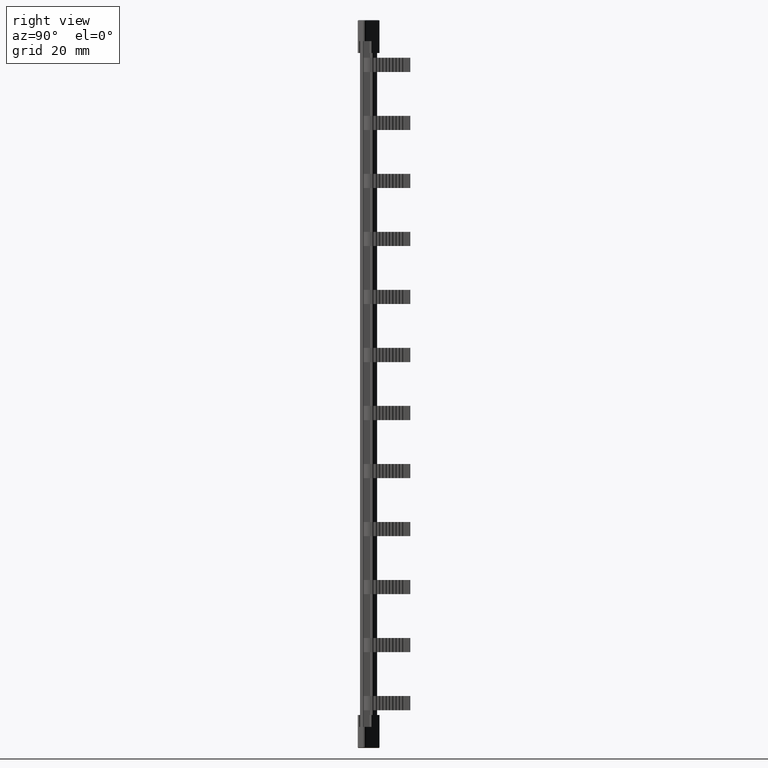
[diagram: clean part render]
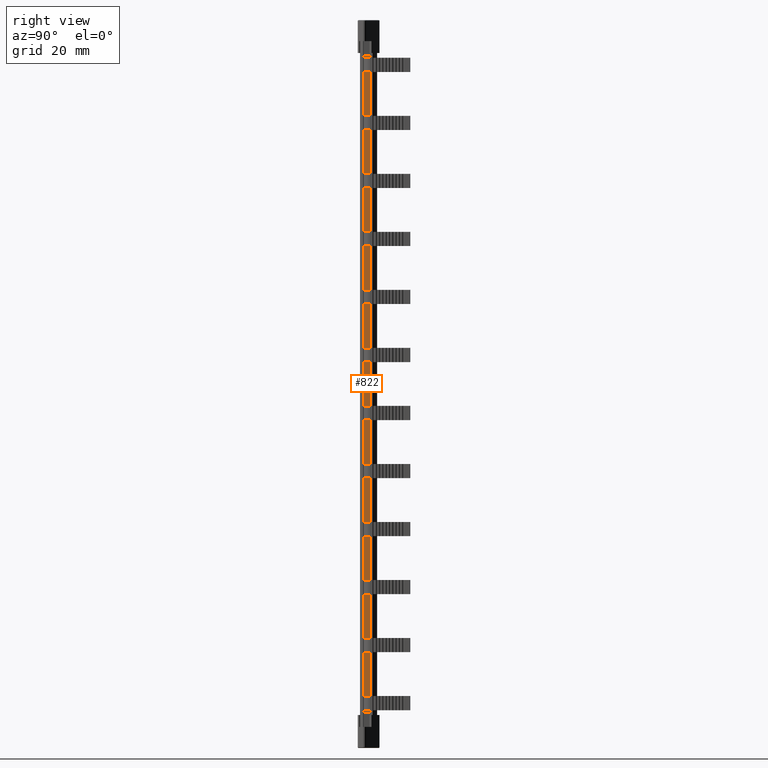
[diagram: same view with one face highlighted and labeled with its STEP entity id]
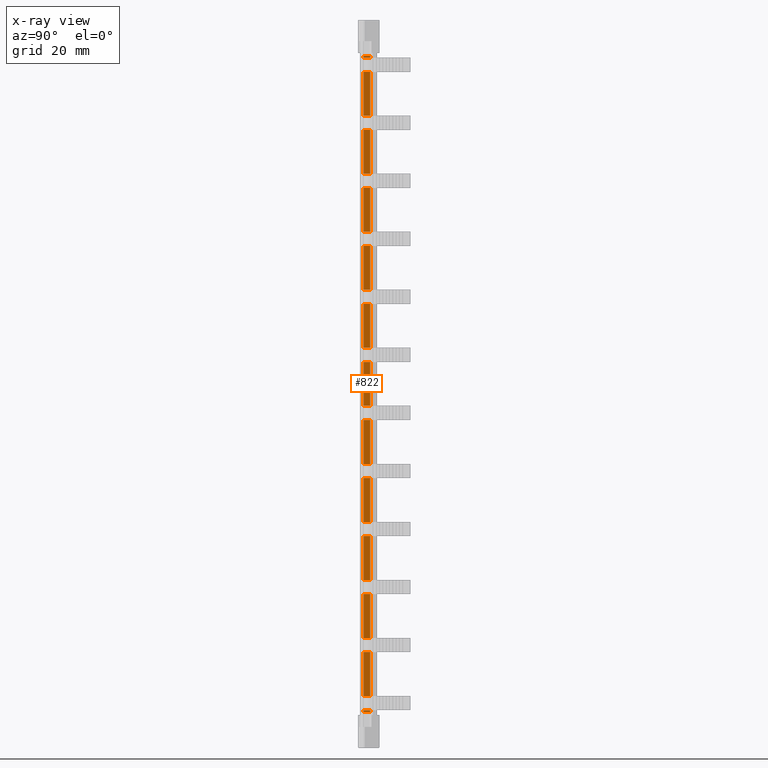
[diagram: x-ray of the same camera — body ghosted, the highlighted face saturated]
A machine part, right view. The second image highlights one B-rep face of the part: STEP entity #822.
The next image is the same camera in x-ray: the body ghosted, the highlighted face saturated — about 0% of this face is hidden behind the body in this view.
In plain terms, the highlighted planar face has unit normal (-1, 0, 0).
Its self-contained STEP definition (entity closure, byte-faithful):
#822 = ADVANCED_FACE ( 'NONE', ( #11958 ), #11952, .F. ) ;
#2274 = LINE ( 'NONE', #2296, #14258 ) ;
#2296 = CARTESIAN_POINT ( 'NONE',  ( 10.37430495582721900, 3.092390552839105600, 28.15000000000000900 ) ) ;
#2360 = DIRECTION ( 'NONE',  ( 0.0000000000000000000, 1.000000000000000000, -0.0000000000000000000 ) ) ;
#2376 = CARTESIAN_POINT ( 'NONE',  ( 10.37430495582721900, 3.092390552839105600, 67.65000000000002000 ) ) ;
#2418 = DIRECTION ( 'NONE',  ( -0.0000000000000000000, -1.000000000000000000, 0.0000000000000000000 ) ) ;
#2452 = LINE ( 'NONE', #2376, #14307 ) ;
#2509 = EDGE_CURVE ( 'NONE', #19887, #19978, #2274, .T. ) ;
#2528 = EDGE_CURVE ( 'NONE', #19786, #19942, #2452, .T. ) ;
#2600 = EDGE_CURVE ( 'NONE', #19946, #19940, #2719, .T. ) ;
#2636 = EDGE_CURVE ( 'NONE', #20057, #19939, #2784, .T. ) ;
#2643 = EDGE_CURVE ( 'NONE', #19977, #19910, #2914, .T. ) ;
#2646 = EDGE_CURVE ( 'NONE', #19921, #19903, #2946, .T. ) ;
#2648 = EDGE_CURVE ( 'NONE', #20032, #20057, #2918, .T. ) ;
#2650 = EDGE_CURVE ( 'NONE', #19940, #19925, #2921, .T. ) ;
#2660 = EDGE_CURVE ( 'NONE', #20036, #20059, #2923, .T. ) ;
#2669 = EDGE_CURVE ( 'NONE', #19973, #19955, #2896, .T. ) ;
#2673 = EDGE_CURVE ( 'NONE', #19929, #19912, #2870, .T. ) ;
#2681 = EDGE_CURVE ( 'NONE', #19978, #19960, #2955, .T. ) ;
#2698 = EDGE_CURVE ( 'NONE', #19944, #19971, #2998, .T. ) ;
#2704 = EDGE_CURVE ( 'NONE', #19884, #19919, #3026, .T. ) ;
#2706 = EDGE_CURVE ( 'NONE', #19915, #19931, #3127, .T. ) ;
#2712 = EDGE_CURVE ( 'NONE', #19903, #19900, #3049, .T. ) ;
#2716 = EDGE_CURVE ( 'NONE', #19949, #19973, #3110, .T. ) ;
#2718 = EDGE_CURVE ( 'NONE', #19900, #19917, #3074, .T. ) ;
#2719 = LINE ( 'NONE', #2745, #14318 ) ;
#2720 = EDGE_CURVE ( 'NONE', #19971, #19933, #3063, .T. ) ;
#2726 = EDGE_CURVE ( 'NONE', #19758, #19884, #3050, .T. ) ;
#2733 = EDGE_CURVE ( 'NONE', #19919, #19889, #3176, .T. ) ;
#2737 = EDGE_CURVE ( 'NONE', #19955, #19777, #3199, .T. ) ;
#2739 = EDGE_CURVE ( 'NONE', #19912, #19786, #3169, .T. ) ;
#2745 = CARTESIAN_POINT ( 'NONE',  ( 10.37430495582721900, 3.092390552839105600, 45.75000000000001400 ) ) ;
#2749 = DIRECTION ( 'NONE',  ( 0.0000000000000000000, 1.000000000000000000, -0.0000000000000000000 ) ) ;
#2755 = EDGE_CURVE ( 'NONE', #19939, #20053, #3193, .T. ) ;
#2758 = EDGE_CURVE ( 'NONE', #19925, #19935, #3195, .T. ) ;
#2760 = EDGE_CURVE ( 'NONE', #19953, #19959, #3269, .T. ) ;
#2764 = EDGE_CURVE ( 'NONE', #19931, #19977, #3230, .T. ) ;
#2766 = EDGE_CURVE ( 'NONE', #19960, #19951, #3209, .T. ) ;
#2773 = EDGE_CURVE ( 'NONE', #19933, #19771, #3274, .T. ) ;
#2784 = LINE ( 'NONE', #2836, #14306 ) ;
#2824 = EDGE_CURVE ( 'NONE', #19866, #19953, #3385, .T. ) ;
#2828 = EDGE_CURVE ( 'NONE', #20038, #20029, #3374, .T. ) ;
#2833 = EDGE_CURVE ( 'NONE', #20069, #19908, #3390, .T. ) ;
#2835 = EDGE_CURVE ( 'NONE', #20059, #20049, #3376, .T. ) ;
#2836 = CARTESIAN_POINT ( 'NONE',  ( 10.37430495582721900, 3.092390552839102500, -0.9240927571826929000 ) ) ;
#2837 = EDGE_CURVE ( 'NONE', #20029, #20069, #3368, .T. ) ;
#2839 = DIRECTION ( 'NONE',  ( 0.0000000000000000000, 0.0000000000000000000, 1.000000000000000000 ) ) ;
#2845 = EDGE_CURVE ( 'NONE', #19901, #20036, #3434, .T. ) ;
#2870 = LINE ( 'NONE', #2878, #14398 ) ;
#2875 = DIRECTION ( 'NONE',  ( 0.0000000000000000000, 0.0000000000000000000, 1.000000000000000000 ) ) ;
#2878 = CARTESIAN_POINT ( 'NONE',  ( 10.37430495582721900, 3.092390552839105600, 63.35000000000001600 ) ) ;
#2885 = EDGE_CURVE ( 'NONE', #19959, #19952, #3473, .T. ) ;
#2884 = CARTESIAN_POINT ( 'NONE',  ( 10.37430495582721900, 3.092390552839105600, 10.55000000000000400 ) ) ;
#2888 = CARTESIAN_POINT ( 'NONE',  ( 10.37430495582721900, 3.092390552839105600, 133.7500000000000300 ) ) ;
#2890 = CARTESIAN_POINT ( 'NONE',  ( 10.37430495582721900, 3.092390552839108200, -0.9240927571826929000 ) ) ;
#2896 = LINE ( 'NONE', #2903, #14377 ) ;
#2903 = CARTESIAN_POINT ( 'NONE',  ( 10.37430495582721900, 3.092390552839102500, -0.9240927571826929000 ) ) ;
#2907 = DIRECTION ( 'NONE',  ( -0.0000000000000000000, -1.000000000000000000, 0.0000000000000000000 ) ) ;
#2913 = DIRECTION ( 'NONE',  ( 0.0000000000000000000, 1.000000000000000000, -0.0000000000000000000 ) ) ;
#2914 = LINE ( 'NONE', #2925, #14360 ) ;
#2916 = DIRECTION ( 'NONE',  ( 0.0000000000000000000, 1.000000000000000000, -0.0000000000000000000 ) ) ;
#2918 = LINE ( 'NONE', #2884, #14368 ) ;
#2921 = LINE ( 'NONE', #2942, #14362 ) ;
#2923 = LINE ( 'NONE', #2890, #14347 ) ;
#2925 = CARTESIAN_POINT ( 'NONE',  ( 10.37430495582721900, 3.092390552839105600, 120.4500000000000200 ) ) ;
#2933 = DIRECTION ( 'NONE',  ( 0.0000000000000000000, 0.0000000000000000000, 1.000000000000000000 ) ) ;
#2942 = CARTESIAN_POINT ( 'NONE',  ( 10.37430495582721900, 3.092390552839102500, -0.9240927571826929000 ) ) ;
#2946 = LINE ( 'NONE', #2888, #14391 ) ;
#2955 = LINE ( 'NONE', #2962, #14399 ) ;
#2962 = CARTESIAN_POINT ( 'NONE',  ( 10.37430495582721900, 3.092390552839102500, -0.9240927571826929000 ) ) ;
#2970 = DIRECTION ( 'NONE',  ( 0.0000000000000000000, 1.000000000000000000, -0.0000000000000000000 ) ) ;
#2977 = DIRECTION ( 'NONE',  ( 0.0000000000000000000, 0.0000000000000000000, 1.000000000000000000 ) ) ;
#2984 = DIRECTION ( 'NONE',  ( 0.0000000000000000000, 0.0000000000000000000, 1.000000000000000000 ) ) ;
#2998 = LINE ( 'NONE', #3013, #14380 ) ;
#3013 = CARTESIAN_POINT ( 'NONE',  ( 10.37430495582721900, 3.092390552839105600, 151.3500000000000800 ) ) ;
#3017 = EDGE_CURVE ( 'NONE', #18647, #20049, #3724, .T. ) ;
#3018 = DIRECTION ( 'NONE',  ( 0.0000000000000000000, 1.000000000000000000, -0.0000000000000000000 ) ) ;
#3026 = LINE ( 'NONE', #3028, #14390 ) ;
#3028 = CARTESIAN_POINT ( 'NONE',  ( 10.37430495582721900, 3.092390552839102500, -0.9240927571826929000 ) ) ;
#3033 = EDGE_CURVE ( 'NONE', #19758, #19942, #9675, .T. ) ;
#3034 = EDGE_CURVE ( 'NONE', #19887, #20053, #9679, .T. ) ;
#3043 = DIRECTION ( 'NONE',  ( 0.0000000000000000000, 0.0000000000000000000, 1.000000000000000000 ) ) ;
#3047 = DIRECTION ( 'NONE',  ( 0.0000000000000000000, 1.000000000000000000, -0.0000000000000000000 ) ) ;
#3049 = LINE ( 'NONE', #3119, #14383 ) ;
#3050 = LINE ( 'NONE', #3056, #14397 ) ;
#3052 = DIRECTION ( 'NONE',  ( 0.0000000000000000000, 1.000000000000000000, -0.0000000000000000000 ) ) ;
#3056 = CARTESIAN_POINT ( 'NONE',  ( 10.37430495582721900, 3.092390552839105600, 80.95000000000001700 ) ) ;
#3063 = LINE ( 'NONE', #3095, #14400 ) ;
#3071 = DIRECTION ( 'NONE',  ( -0.0000000000000000000, -1.000000000000000000, 0.0000000000000000000 ) ) ;
#3073 = DIRECTION ( 'NONE',  ( 0.0000000000000000000, 0.0000000000000000000, 1.000000000000000000 ) ) ;
#3074 = LINE ( 'NONE', #3123, #14387 ) ;
#3080 = CARTESIAN_POINT ( 'NONE',  ( 10.37430495582721900, 3.092390552839105600, 116.1500000000000200 ) ) ;
#3083 = DIRECTION ( 'NONE',  ( 0.0000000000000000000, 1.000000000000000000, -0.0000000000000000000 ) ) ;
#3095 = CARTESIAN_POINT ( 'NONE',  ( 10.37430495582721900, 3.092390552839102500, -0.9240927571826929000 ) ) ;
#3098 = EDGE_CURVE ( 'NONE', #18649, #18723, #9820, .T. ) ;
#3101 = EDGE_CURVE ( 'NONE', #19946, #19951, #9791, .T. ) ;
#3110 = LINE ( 'NONE', #3121, #14385 ) ;
#3112 = DIRECTION ( 'NONE',  ( 0.0000000000000000000, 0.0000000000000000000, 1.000000000000000000 ) ) ;
#3119 = CARTESIAN_POINT ( 'NONE',  ( 10.37430495582721900, 3.092390552839102500, -0.9240927571826929000 ) ) ;
#3121 = CARTESIAN_POINT ( 'NONE',  ( 10.37430495582721900, 3.092390552839105600, 98.55000000000002600 ) ) ;
#3123 = CARTESIAN_POINT ( 'NONE',  ( 10.37430495582721900, 3.092390552839105600, 138.0500000000000100 ) ) ;
#3127 = LINE ( 'NONE', #3080, #14359 ) ;
#3133 = CARTESIAN_POINT ( 'NONE',  ( 10.37430495582721900, 3.092390552839102500, -0.9240927571826929000 ) ) ;
#3135 = DIRECTION ( 'NONE',  ( 0.0000000000000000000, 0.0000000000000000000, 1.000000000000000000 ) ) ;
#3137 = CARTESIAN_POINT ( 'NONE',  ( 10.37430495582721900, 3.092390552839105600, 50.05000000000001100 ) ) ;
#3138 = EDGE_CURVE ( 'NONE', #18649, #18627, #9928, .T. ) ;
#3146 = CARTESIAN_POINT ( 'NONE',  ( 10.37430495582721900, 3.092390552839105600, 14.85000000000000100 ) ) ;
#3151 = DIRECTION ( 'NONE',  ( -0.0000000000000000000, -1.000000000000000000, 0.0000000000000000000 ) ) ;
#3167 = EDGE_CURVE ( 'NONE', #20038, #19952, #9972, .T. ) ;
#3169 = LINE ( 'NONE', #3133, #14467 ) ;
#3176 = LINE ( 'NONE', #3185, #14461 ) ;
#3185 = CARTESIAN_POINT ( 'NONE',  ( 10.37430495582721900, 3.092390552839105600, 85.25000000000001400 ) ) ;
#3187 = DIRECTION ( 'NONE',  ( -0.0000000000000000000, -1.000000000000000000, 0.0000000000000000000 ) ) ;
#3192 = EDGE_CURVE ( 'NONE', #19921, #19910, #9995, .T. ) ;
#3193 = LINE ( 'NONE', #3146, #14446 ) ;
#3195 = LINE ( 'NONE', #3137, #14406 ) ;
#3196 = EDGE_CURVE ( 'NONE', #19929, #19935, #10013, .T. ) ;
#3199 = LINE ( 'NONE', #3222, #14455 ) ;
#3209 = LINE ( 'NONE', #3246, #14456 ) ;
#3210 = EDGE_CURVE ( 'NONE', #20032, #18627, #10025, .T. ) ;
#3212 = DIRECTION ( 'NONE',  ( -0.0000000000000000000, -1.000000000000000000, 0.0000000000000000000 ) ) ;
#3213 = DIRECTION ( 'NONE',  ( -0.0000000000000000000, -1.000000000000000000, 0.0000000000000000000 ) ) ;
#3217 = EDGE_CURVE ( 'NONE', #19944, #19917, #10034, .T. ) ;
#3221 = EDGE_CURVE ( 'NONE', #19915, #19777, #10055, .T. ) ;
#3222 = CARTESIAN_POINT ( 'NONE',  ( 10.37430495582721900, 3.092390552839105600, 102.8500000000000200 ) ) ;
#3230 = LINE ( 'NONE', #3238, #14464 ) ;
#3237 = EDGE_CURVE ( 'NONE', #19949, #19889, #10089, .T. ) ;
#3238 = CARTESIAN_POINT ( 'NONE',  ( 10.37430495582721900, 3.092390552839102500, -0.9240927571826929000 ) ) ;
#3246 = CARTESIAN_POINT ( 'NONE',  ( 10.37430495582721900, 3.092390552839105600, 32.45000000000001700 ) ) ;
#3250 = EDGE_CURVE ( 'NONE', #19866, #19771, #10086, .T. ) ;
#3252 = EDGE_CURVE ( 'NONE', #18647, #18723, #10106, .T. ) ;
#3256 = EDGE_CURVE ( 'NONE', #19901, #19908, #10141, .T. ) ;
#3258 = DIRECTION ( 'NONE',  ( 0.0000000000000000000, 0.0000000000000000000, 1.000000000000000000 ) ) ;
#3262 = DIRECTION ( 'NONE',  ( 0.0000000000000000000, 0.0000000000000000000, 1.000000000000000000 ) ) ;
#3264 = CARTESIAN_POINT ( 'NONE',  ( 10.37430495582721900, 3.092390552839102500, -0.9240927571826929000 ) ) ;
#3269 = LINE ( 'NONE', #3264, #14442 ) ;
#3271 = DIRECTION ( 'NONE',  ( -0.0000000000000000000, -1.000000000000000000, 0.0000000000000000000 ) ) ;
#3274 = LINE ( 'NONE', #3307, #14447 ) ;
#3307 = CARTESIAN_POINT ( 'NONE',  ( 10.37430495582721900, 3.092390552839105600, 155.6500000000000100 ) ) ;
#3316 = DIRECTION ( 'NONE',  ( -0.0000000000000000000, -1.000000000000000000, 0.0000000000000000000 ) ) ;
#3368 = LINE ( 'NONE', #3394, #14492 ) ;
#3374 = LINE ( 'NONE', #3399, #14435 ) ;
#3375 = DIRECTION ( 'NONE',  ( 0.0000000000000000000, 0.0000000000000000000, 1.000000000000000000 ) ) ;
#3376 = LINE ( 'NONE', #3405, #14528 ) ;
#3381 = CARTESIAN_POINT ( 'NONE',  ( 10.37430495582721900, 3.092390552839105600, 168.9500000000000200 ) ) ;
#3385 = LINE ( 'NONE', #3381, #14419 ) ;
#3390 = LINE ( 'NONE', #3401, #14507 ) ;
#3394 = CARTESIAN_POINT ( 'NONE',  ( 10.37430495582721900, 3.092390552839102500, -0.9240927571826929000 ) ) ;
#3399 = CARTESIAN_POINT ( 'NONE',  ( 10.37430495582721900, 3.092390552839105600, 186.5500000000000100 ) ) ;
#3400 = DIRECTION ( 'NONE',  ( 0.0000000000000000000, 1.000000000000000000, -0.0000000000000000000 ) ) ;
#3401 = CARTESIAN_POINT ( 'NONE',  ( 10.37430495582721900, 3.092390552839105600, 190.8500000000000200 ) ) ;
#3402 = DIRECTION ( 'NONE',  ( -0.0000000000000000000, -1.000000000000000000, 0.0000000000000000000 ) ) ;
#3403 = DIRECTION ( 'NONE',  ( 0.0000000000000000000, 1.000000000000000000, -0.0000000000000000000 ) ) ;
#3405 = CARTESIAN_POINT ( 'NONE',  ( 10.37430495582721900, 3.092390552839105600, 208.4500000000000200 ) ) ;
#3411 = DIRECTION ( 'NONE',  ( -0.0000000000000000000, -1.000000000000000000, 0.0000000000000000000 ) ) ;
#3433 = CARTESIAN_POINT ( 'NONE',  ( 10.37430495582721900, 3.092390552839105600, 204.1500000000000300 ) ) ;
#3434 = LINE ( 'NONE', #3433, #14476 ) ;
#3435 = DIRECTION ( 'NONE',  ( 0.0000000000000000000, 1.000000000000000000, -0.0000000000000000000 ) ) ;
#3464 = CARTESIAN_POINT ( 'NONE',  ( 10.37430495582721900, 3.092390552839105600, 173.2500000000000600 ) ) ;
#3473 = LINE ( 'NONE', #3464, #14520 ) ;
#3504 = DIRECTION ( 'NONE',  ( -0.0000000000000000000, -1.000000000000000000, 0.0000000000000000000 ) ) ;
#3724 = LINE ( 'NONE', #3745, #14540 ) ;
#3745 = CARTESIAN_POINT ( 'NONE',  ( 10.37430495582735900, 1.100000111734499500, 219.0000000000000000 ) ) ;
#3753 = DIRECTION ( 'NONE',  ( -0.0000000000000000000, -0.0000000000000000000, -1.000000000000000000 ) ) ;
#4609 = AXIS2_PLACEMENT_3D ( 'NONE', #11961, #11981, #11954 ) ;
#7638 = CARTESIAN_POINT ( 'NONE',  ( 10.37430495582736800, 1.100000082998333600, 80.95000000000001700 ) ) ;
#7645 = CARTESIAN_POINT ( 'NONE',  ( 10.37430495582736800, 1.100000025526001400, 102.8500000000000400 ) ) ;
#7693 = CARTESIAN_POINT ( 'NONE',  ( 10.37430495582736800, 1.100000111734499500, 155.6500000000000100 ) ) ;
#7700 = CARTESIAN_POINT ( 'NONE',  ( 10.37430495582721900, 3.092390552839102500, 67.65000000000002000 ) ) ;
#7702 = CARTESIAN_POINT ( 'NONE',  ( 10.37430495582736800, 1.100000025526001400, 85.25000000000000000 ) ) ;
#7703 = CARTESIAN_POINT ( 'NONE',  ( 10.37430495582736800, 1.100000025526001400, 120.4500000000000200 ) ) ;
#7705 = CARTESIAN_POINT ( 'NONE',  ( 10.37430495582736800, 1.100000082998333600, 116.1500000000000200 ) ) ;
#7706 = CARTESIAN_POINT ( 'NONE',  ( 10.37430495582721900, 3.092390552839102500, 85.25000000000001400 ) ) ;
#7708 = CARTESIAN_POINT ( 'NONE',  ( 10.37430495582736800, 1.100000082998333600, 133.7500000000000300 ) ) ;
#7709 = CARTESIAN_POINT ( 'NONE',  ( 10.37430495582736800, 1.100000111734499500, 138.0500000000000100 ) ) ;
#7716 = CARTESIAN_POINT ( 'NONE',  ( 10.37430495582736800, 1.100000111734499500, 190.8500000000000500 ) ) ;
#7740 = CARTESIAN_POINT ( 'NONE',  ( 10.37430495582736800, 1.100000082998333600, 28.15000000000000900 ) ) ;
#7745 = CARTESIAN_POINT ( 'NONE',  ( 10.37430495582721900, 3.092390552839102500, 138.0500000000000100 ) ) ;
#7746 = CARTESIAN_POINT ( 'NONE',  ( 10.37430495582721900, 3.092390552839102500, 63.35000000000001600 ) ) ;
#7754 = CARTESIAN_POINT ( 'NONE',  ( 10.37430495582736800, 1.100000111734499500, 168.9500000000000200 ) ) ;
#7757 = CARTESIAN_POINT ( 'NONE',  ( 10.37430495582721900, 3.092390552839102500, 80.95000000000001700 ) ) ;
#7760 = CARTESIAN_POINT ( 'NONE',  ( 10.37430495582736800, 1.100000111734499500, 204.1500000000000300 ) ) ;
#7761 = CARTESIAN_POINT ( 'NONE',  ( 10.37430495582721900, 3.092390552839102500, 133.7500000000000300 ) ) ;
#7765 = CARTESIAN_POINT ( 'NONE',  ( 10.37430495582736800, 1.100000111734499500, 173.2500000000000600 ) ) ;
#7766 = CARTESIAN_POINT ( 'NONE',  ( 10.37430495582721900, 3.092390552839102500, 45.75000000000001400 ) ) ;
#7767 = CARTESIAN_POINT ( 'NONE',  ( 10.37430495582736800, 1.100000025526001400, 50.05000000000001100 ) ) ;
#7768 = CARTESIAN_POINT ( 'NONE',  ( 10.37430495582721900, 3.092390552839102500, 168.9500000000000200 ) ) ;
#7771 = CARTESIAN_POINT ( 'NONE',  ( 10.37430495582721900, 3.092390552839102500, 32.45000000000001700 ) ) ;
#7777 = CARTESIAN_POINT ( 'NONE',  ( 10.37430495582736800, 1.100000111734499500, 186.5500000000000100 ) ) ;
#7780 = CARTESIAN_POINT ( 'NONE',  ( 10.37430495582736800, 1.100000082998333600, 98.55000000000002600 ) ) ;
#7781 = CARTESIAN_POINT ( 'NONE',  ( 10.37430495582721900, 3.092390552839102500, 102.8500000000000200 ) ) ;
#7782 = CARTESIAN_POINT ( 'NONE',  ( 10.37430495582736800, 1.100000082998333600, 63.35000000000001600 ) ) ;
#7784 = CARTESIAN_POINT ( 'NONE',  ( 10.37430495582721900, 3.092390552839102500, 98.55000000000002600 ) ) ;
#7785 = CARTESIAN_POINT ( 'NONE',  ( 10.37430495582721900, 3.092390552839102500, 120.4500000000000200 ) ) ;
#7786 = CARTESIAN_POINT ( 'NONE',  ( 10.37430495582736800, 1.100000025526001400, 67.65000000000002000 ) ) ;
#7788 = CARTESIAN_POINT ( 'NONE',  ( 10.37430495582736800, 1.100000082998333600, 45.75000000000001400 ) ) ;
#7797 = CARTESIAN_POINT ( 'NONE',  ( 10.37430495582721900, 3.092390552839102500, 50.05000000000001100 ) ) ;
#7800 = CARTESIAN_POINT ( 'NONE',  ( 10.37430495582721900, 3.092390552839102500, 151.3500000000000800 ) ) ;
#7806 = CARTESIAN_POINT ( 'NONE',  ( 10.37430495582736800, 1.100000025526001400, 32.45000000000001700 ) ) ;
#7811 = CARTESIAN_POINT ( 'NONE',  ( 10.37430495582721900, 3.092390552839102500, 155.6500000000000100 ) ) ;
#7812 = CARTESIAN_POINT ( 'NONE',  ( 10.37430495582736800, 1.100000111734499500, 151.3500000000000800 ) ) ;
#7813 = CARTESIAN_POINT ( 'NONE',  ( 10.37430495582721900, 3.092390552839102500, 28.15000000000000900 ) ) ;
#7815 = CARTESIAN_POINT ( 'NONE',  ( 10.37430495582721900, 3.092390552839102500, 14.85000000000000100 ) ) ;
#7816 = CARTESIAN_POINT ( 'NONE',  ( 10.37430495582721900, 3.092390552839102500, 173.2500000000000600 ) ) ;
#7819 = CARTESIAN_POINT ( 'NONE',  ( 10.37430495582736800, 1.100000111734499500, 10.55000000000000400 ) ) ;
#7821 = CARTESIAN_POINT ( 'NONE',  ( 10.37430495582721900, 3.092390552839105600, 204.1500000000000300 ) ) ;
#7825 = CARTESIAN_POINT ( 'NONE',  ( 10.37430495582721900, 3.092390552839102500, 116.1500000000000200 ) ) ;
#7828 = CARTESIAN_POINT ( 'NONE',  ( 10.37430495582721900, 3.092390552839102500, 186.5500000000000100 ) ) ;
#7842 = CARTESIAN_POINT ( 'NONE',  ( 10.37430495582721900, 3.092390552839102500, 190.8500000000000200 ) ) ;
#7869 = CARTESIAN_POINT ( 'NONE',  ( 10.37430495582736800, 1.100000025526001400, 14.85000000000000100 ) ) ;
#7884 = CARTESIAN_POINT ( 'NONE',  ( 10.37430495582726500, 1.100000068630250500, 208.4500000000000200 ) ) ;
#7887 = CARTESIAN_POINT ( 'NONE',  ( 10.37430495582721900, 3.092390552839102500, 10.55000000000000400 ) ) ;
#7891 = CARTESIAN_POINT ( 'NONE',  ( 10.37430495582721900, 3.092390552839105600, 208.4500000000000200 ) ) ;
#7989 = CARTESIAN_POINT ( 'NONE',  ( 10.37430495582724400, 3.100000585347644200, 209.0000000000000000 ) ) ;
#9273 = CARTESIAN_POINT ( 'NONE',  ( 10.37430495582751700, 1.100000013578794000, 9.999999999999982200 ) ) ;
#9274 = CARTESIAN_POINT ( 'NONE',  ( 10.37430495582721900, 3.100000585347644200, 9.999999999999982200 ) ) ;
#9298 = CARTESIAN_POINT ( 'NONE',  ( 10.37430495582717400, 1.100000068630250700, 209.0000000000000000 ) ) ;
#9649 = CARTESIAN_POINT ( 'NONE',  ( 10.37430495582766800, 1.100000111734499500, 219.0000000000000000 ) ) ;
#9660 = CARTESIAN_POINT ( 'NONE',  ( 10.37430495582766800, 1.100000111734499500, 219.0000000000000000 ) ) ;
#9675 = LINE ( 'NONE', #9660, #13501 ) ;
#9676 = DIRECTION ( 'NONE',  ( -0.0000000000000000000, -0.0000000000000000000, -1.000000000000000000 ) ) ;
#9679 = LINE ( 'NONE', #9649, #13507 ) ;
#9680 = DIRECTION ( 'NONE',  ( -0.0000000000000000000, -0.0000000000000000000, -1.000000000000000000 ) ) ;
#9791 = LINE ( 'NONE', #9826, #13486 ) ;
#9814 = CARTESIAN_POINT ( 'NONE',  ( 10.37430495582721900, 3.100000585347644200, 207.9000000000000100 ) ) ;
#9820 = LINE ( 'NONE', #9814, #13534 ) ;
#9826 = CARTESIAN_POINT ( 'NONE',  ( 10.37430495582766800, 1.100000111734499500, 219.0000000000000000 ) ) ;
#9828 = DIRECTION ( 'NONE',  ( -0.0000000000000000000, 2.593268936129210100E-023, 1.000000000000000000 ) ) ;
#9830 = DIRECTION ( 'NONE',  ( -0.0000000000000000000, -0.0000000000000000000, -1.000000000000000000 ) ) ;
#9898 = CARTESIAN_POINT ( 'NONE',  ( 10.37430495582721900, 3.092390552839105600, 9.999999999999985800 ) ) ;
#9908 = DIRECTION ( 'NONE',  ( -0.0000000000000000000, -1.000000000000000000, 0.0000000000000000000 ) ) ;
#9928 = LINE ( 'NONE', #9898, #13523 ) ;
#9943 = CARTESIAN_POINT ( 'NONE',  ( 10.37430495582766800, 1.100000111734499500, 219.0000000000000000 ) ) ;
#9969 = DIRECTION ( 'NONE',  ( -0.0000000000000000000, -0.0000000000000000000, -1.000000000000000000 ) ) ;
#9972 = LINE ( 'NONE', #9943, #13588 ) ;
#9988 = CARTESIAN_POINT ( 'NONE',  ( 10.37430495582766800, 1.100000111734499500, 219.0000000000000000 ) ) ;
#9995 = LINE ( 'NONE', #9997, #13572 ) ;
#9997 = CARTESIAN_POINT ( 'NONE',  ( 10.37430495582766800, 1.100000111734499500, 219.0000000000000000 ) ) ;
#10002 = DIRECTION ( 'NONE',  ( -0.0000000000000000000, -0.0000000000000000000, -1.000000000000000000 ) ) ;
#10013 = LINE ( 'NONE', #10014, #13587 ) ;
#10014 = CARTESIAN_POINT ( 'NONE',  ( 10.37430495582766800, 1.100000111734499500, 219.0000000000000000 ) ) ;
#10023 = DIRECTION ( 'NONE',  ( -0.0000000000000000000, -0.0000000000000000000, -1.000000000000000000 ) ) ;
#10025 = LINE ( 'NONE', #9988, #13582 ) ;
#10032 = DIRECTION ( 'NONE',  ( -0.0000000000000000000, -0.0000000000000000000, -1.000000000000000000 ) ) ;
#10034 = LINE ( 'NONE', #10063, #13578 ) ;
#10037 = CARTESIAN_POINT ( 'NONE',  ( 10.37430495582766800, 1.100000111734499500, 219.0000000000000000 ) ) ;
#10049 = DIRECTION ( 'NONE',  ( -0.0000000000000000000, -0.0000000000000000000, -1.000000000000000000 ) ) ;
#10055 = LINE ( 'NONE', #10037, #13555 ) ;
#10061 = DIRECTION ( 'NONE',  ( -0.0000000000000000000, -0.0000000000000000000, -1.000000000000000000 ) ) ;
#10063 = CARTESIAN_POINT ( 'NONE',  ( 10.37430495582766800, 1.100000111734499500, 219.0000000000000000 ) ) ;
#10083 = CARTESIAN_POINT ( 'NONE',  ( 10.37430495582766800, 1.100000111734499500, 219.0000000000000000 ) ) ;
#10086 = LINE ( 'NONE', #10087, #13639 ) ;
#10087 = CARTESIAN_POINT ( 'NONE',  ( 10.37430495582766800, 1.100000111734499500, 219.0000000000000000 ) ) ;
#10089 = LINE ( 'NONE', #10083, #13558 ) ;
#10093 = CARTESIAN_POINT ( 'NONE',  ( 10.37430495582721900, 3.092390552839105600, 209.0000000000000000 ) ) ;
#10103 = DIRECTION ( 'NONE',  ( -0.0000000000000000000, -0.0000000000000000000, -1.000000000000000000 ) ) ;
#10106 = LINE ( 'NONE', #10093, #13638 ) ;
#10109 = DIRECTION ( 'NONE',  ( -0.0000000000000000000, -0.0000000000000000000, -1.000000000000000000 ) ) ;
#10141 = LINE ( 'NONE', #10169, #13658 ) ;
#10162 = DIRECTION ( 'NONE',  ( 0.0000000000000000000, 1.000000000000000000, -0.0000000000000000000 ) ) ;
#10169 = CARTESIAN_POINT ( 'NONE',  ( 10.37430495582766800, 1.100000111734499500, 219.0000000000000000 ) ) ;
#10180 = DIRECTION ( 'NONE',  ( -0.0000000000000000000, -0.0000000000000000000, -1.000000000000000000 ) ) ;
#11952 = PLANE ( 'NONE',  #4609 ) ;
#11954 = DIRECTION ( 'NONE',  ( 0.0000000000000000000, 0.0000000000000000000, 1.000000000000000000 ) ) ;
#11958 = FACE_OUTER_BOUND ( 'NONE', #20412, .T. ) ;
#11961 = CARTESIAN_POINT ( 'NONE',  ( 10.37430495582721900, 3.092390552839105600, -0.9240927571826929000 ) ) ;
#11981 = DIRECTION ( 'NONE',  ( -1.000000000000000000, 0.0000000000000000000, 0.0000000000000000000 ) ) ;
#13486 = VECTOR ( 'NONE', #9830, 1000.000000000000000 ) ;
#13501 = VECTOR ( 'NONE', #9676, 1000.000000000000000 ) ;
#13507 = VECTOR ( 'NONE', #9680, 1000.000000000000000 ) ;
#13523 = VECTOR ( 'NONE', #9908, 1000.000000000000000 ) ;
#13534 = VECTOR ( 'NONE', #9828, 1000.000000000000000 ) ;
#13555 = VECTOR ( 'NONE', #10032, 1000.000000000000000 ) ;
#13558 = VECTOR ( 'NONE', #10109, 1000.000000000000000 ) ;
#13572 = VECTOR ( 'NONE', #10002, 1000.000000000000000 ) ;
#13578 = VECTOR ( 'NONE', #10049, 1000.000000000000000 ) ;
#13582 = VECTOR ( 'NONE', #10061, 1000.000000000000000 ) ;
#13587 = VECTOR ( 'NONE', #10023, 1000.000000000000000 ) ;
#13588 = VECTOR ( 'NONE', #9969, 1000.000000000000000 ) ;
#13638 = VECTOR ( 'NONE', #10162, 1000.000000000000000 ) ;
#13639 = VECTOR ( 'NONE', #10103, 1000.000000000000000 ) ;
#13658 = VECTOR ( 'NONE', #10180, 1000.000000000000000 ) ;
#14258 = VECTOR ( 'NONE', #2360, 1000.000000000000000 ) ;
#14306 = VECTOR ( 'NONE', #2839, 1000.000000000000000 ) ;
#14307 = VECTOR ( 'NONE', #2418, 1000.000000000000000 ) ;
#14318 = VECTOR ( 'NONE', #2749, 1000.000000000000000 ) ;
#14347 = VECTOR ( 'NONE', #2875, 1000.000000000000000 ) ;
#14359 = VECTOR ( 'NONE', #3047, 1000.000000000000000 ) ;
#14360 = VECTOR ( 'NONE', #2907, 1000.000000000000000 ) ;
#14362 = VECTOR ( 'NONE', #2933, 1000.000000000000000 ) ;
#14368 = VECTOR ( 'NONE', #2916, 1000.000000000000000 ) ;
#14377 = VECTOR ( 'NONE', #2977, 1000.000000000000000 ) ;
#14380 = VECTOR ( 'NONE', #3018, 1000.000000000000000 ) ;
#14383 = VECTOR ( 'NONE', #3073, 1000.000000000000000 ) ;
#14385 = VECTOR ( 'NONE', #3052, 1000.000000000000000 ) ;
#14387 = VECTOR ( 'NONE', #3071, 1000.000000000000000 ) ;
#14390 = VECTOR ( 'NONE', #3112, 1000.000000000000000 ) ;
#14391 = VECTOR ( 'NONE', #2913, 1000.000000000000000 ) ;
#14397 = VECTOR ( 'NONE', #3083, 1000.000000000000000 ) ;
#14398 = VECTOR ( 'NONE', #2970, 1000.000000000000000 ) ;
#14399 = VECTOR ( 'NONE', #2984, 1000.000000000000000 ) ;
#14400 = VECTOR ( 'NONE', #3043, 1000.000000000000000 ) ;
#14406 = VECTOR ( 'NONE', #3213, 1000.000000000000000 ) ;
#14419 = VECTOR ( 'NONE', #3403, 1000.000000000000000 ) ;
#14435 = VECTOR ( 'NONE', #3400, 1000.000000000000000 ) ;
#14442 = VECTOR ( 'NONE', #3258, 1000.000000000000000 ) ;
#14446 = VECTOR ( 'NONE', #3212, 1000.000000000000000 ) ;
#14447 = VECTOR ( 'NONE', #3316, 1000.000000000000000 ) ;
#14455 = VECTOR ( 'NONE', #3151, 1000.000000000000000 ) ;
#14456 = VECTOR ( 'NONE', #3271, 1000.000000000000000 ) ;
#14461 = VECTOR ( 'NONE', #3187, 1000.000000000000000 ) ;
#14464 = VECTOR ( 'NONE', #3262, 1000.000000000000000 ) ;
#14467 = VECTOR ( 'NONE', #3135, 1000.000000000000000 ) ;
#14476 = VECTOR ( 'NONE', #3435, 1000.000000000000000 ) ;
#14492 = VECTOR ( 'NONE', #3375, 1000.000000000000000 ) ;
#14507 = VECTOR ( 'NONE', #3402, 1000.000000000000000 ) ;
#14520 = VECTOR ( 'NONE', #3504, 1000.000000000000000 ) ;
#14528 = VECTOR ( 'NONE', #3411, 1000.000000000000000 ) ;
#14540 = VECTOR ( 'NONE', #3753, 1000.000000000000000 ) ;
#14628 = ORIENTED_EDGE ( 'NONE', *, *, #2646, .F. ) ;
#14630 = ORIENTED_EDGE ( 'NONE', *, *, #3167, .T. ) ;
#14631 = ORIENTED_EDGE ( 'NONE', *, *, #2837, .F. ) ;
#14632 = ORIENTED_EDGE ( 'NONE', *, *, #2726, .F. ) ;
#14633 = ORIENTED_EDGE ( 'NONE', *, *, #3210, .T. ) ;
#14635 = ORIENTED_EDGE ( 'NONE', *, *, #2764, .F. ) ;
#14636 = ORIENTED_EDGE ( 'NONE', *, *, #2828, .F. ) ;
#14637 = ORIENTED_EDGE ( 'NONE', *, *, #2712, .F. ) ;
#14638 = ORIENTED_EDGE ( 'NONE', *, *, #2669, .F. ) ;
#14640 = ORIENTED_EDGE ( 'NONE', *, *, #2720, .F. ) ;
#14641 = ORIENTED_EDGE ( 'NONE', *, *, #3237, .T. ) ;
#14642 = ORIENTED_EDGE ( 'NONE', *, *, #2733, .F. ) ;
#14643 = ORIENTED_EDGE ( 'NONE', *, *, #3017, .T. ) ;
#14647 = ORIENTED_EDGE ( 'NONE', *, *, #2643, .F. ) ;
#14648 = ORIENTED_EDGE ( 'NONE', *, *, #2885, .F. ) ;
#14649 = ORIENTED_EDGE ( 'NONE', *, *, #2648, .F. ) ;
#14659 = ORIENTED_EDGE ( 'NONE', *, *, #3033, .T. ) ;
#14662 = ORIENTED_EDGE ( 'NONE', *, *, #2660, .F. ) ;
#14663 = ORIENTED_EDGE ( 'NONE', *, *, #2718, .F. ) ;
#14664 = ORIENTED_EDGE ( 'NONE', *, *, #2704, .F. ) ;
#14665 = ORIENTED_EDGE ( 'NONE', *, *, #2528, .F. ) ;
#14666 = ORIENTED_EDGE ( 'NONE', *, *, #2737, .F. ) ;
#14667 = ORIENTED_EDGE ( 'NONE', *, *, #3250, .T. ) ;
#14670 = ORIENTED_EDGE ( 'NONE', *, *, #2698, .F. ) ;
#14675 = ORIENTED_EDGE ( 'NONE', *, *, #2636, .F. ) ;
#14676 = ORIENTED_EDGE ( 'NONE', *, *, #2716, .F. ) ;
#14679 = ORIENTED_EDGE ( 'NONE', *, *, #3252, .F. ) ;
#14680 = ORIENTED_EDGE ( 'NONE', *, *, #3192, .T. ) ;
#14682 = ORIENTED_EDGE ( 'NONE', *, *, #2706, .F. ) ;
#14683 = ORIENTED_EDGE ( 'NONE', *, *, #3138, .F. ) ;
#14684 = ORIENTED_EDGE ( 'NONE', *, *, #3221, .T. ) ;
#14686 = ORIENTED_EDGE ( 'NONE', *, *, #2758, .F. ) ;
#14688 = ORIENTED_EDGE ( 'NONE', *, *, #2681, .F. ) ;
#14692 = ORIENTED_EDGE ( 'NONE', *, *, #2755, .F. ) ;
#14697 = ORIENTED_EDGE ( 'NONE', *, *, #2824, .F. ) ;
#14698 = ORIENTED_EDGE ( 'NONE', *, *, #3256, .T. ) ;
#14701 = ORIENTED_EDGE ( 'NONE', *, *, #3101, .T. ) ;
#14705 = ORIENTED_EDGE ( 'NONE', *, *, #2739, .F. ) ;
#14707 = ORIENTED_EDGE ( 'NONE', *, *, #2650, .F. ) ;
#14708 = ORIENTED_EDGE ( 'NONE', *, *, #2673, .F. ) ;
#14711 = ORIENTED_EDGE ( 'NONE', *, *, #3196, .T. ) ;
#14722 = ORIENTED_EDGE ( 'NONE', *, *, #2600, .F. ) ;
#14723 = ORIENTED_EDGE ( 'NONE', *, *, #2773, .F. ) ;
#14725 = ORIENTED_EDGE ( 'NONE', *, *, #3034, .T. ) ;
#14728 = ORIENTED_EDGE ( 'NONE', *, *, #2835, .F. ) ;
#14731 = ORIENTED_EDGE ( 'NONE', *, *, #2760, .F. ) ;
#14734 = ORIENTED_EDGE ( 'NONE', *, *, #2845, .F. ) ;
#14736 = ORIENTED_EDGE ( 'NONE', *, *, #3217, .T. ) ;
#14737 = ORIENTED_EDGE ( 'NONE', *, *, #2766, .F. ) ;
#14742 = ORIENTED_EDGE ( 'NONE', *, *, #2833, .F. ) ;
#14743 = ORIENTED_EDGE ( 'NONE', *, *, #3098, .T. ) ;
#14745 = ORIENTED_EDGE ( 'NONE', *, *, #2509, .F. ) ;
#18627 = VERTEX_POINT ( 'NONE', #9273 ) ;
#18647 = VERTEX_POINT ( 'NONE', #9298 ) ;
#18649 = VERTEX_POINT ( 'NONE', #9274 ) ;
#18723 = VERTEX_POINT ( 'NONE', #7989 ) ;
#19758 = VERTEX_POINT ( 'NONE', #7638 ) ;
#19771 = VERTEX_POINT ( 'NONE', #7693 ) ;
#19777 = VERTEX_POINT ( 'NONE', #7645 ) ;
#19786 = VERTEX_POINT ( 'NONE', #7700 ) ;
#19866 = VERTEX_POINT ( 'NONE', #7754 ) ;
#19884 = VERTEX_POINT ( 'NONE', #7757 ) ;
#19887 = VERTEX_POINT ( 'NONE', #7740 ) ;
#19889 = VERTEX_POINT ( 'NONE', #7702 ) ;
#19900 = VERTEX_POINT ( 'NONE', #7745 ) ;
#19901 = VERTEX_POINT ( 'NONE', #7760 ) ;
#19903 = VERTEX_POINT ( 'NONE', #7761 ) ;
#19908 = VERTEX_POINT ( 'NONE', #7716 ) ;
#19910 = VERTEX_POINT ( 'NONE', #7703 ) ;
#19912 = VERTEX_POINT ( 'NONE', #7746 ) ;
#19915 = VERTEX_POINT ( 'NONE', #7705 ) ;
#19917 = VERTEX_POINT ( 'NONE', #7709 ) ;
#19919 = VERTEX_POINT ( 'NONE', #7706 ) ;
#19921 = VERTEX_POINT ( 'NONE', #7708 ) ;
#19925 = VERTEX_POINT ( 'NONE', #7797 ) ;
#19929 = VERTEX_POINT ( 'NONE', #7782 ) ;
#19931 = VERTEX_POINT ( 'NONE', #7825 ) ;
#19933 = VERTEX_POINT ( 'NONE', #7811 ) ;
#19935 = VERTEX_POINT ( 'NONE', #7767 ) ;
#19939 = VERTEX_POINT ( 'NONE', #7815 ) ;
#19940 = VERTEX_POINT ( 'NONE', #7766 ) ;
#19942 = VERTEX_POINT ( 'NONE', #7786 ) ;
#19944 = VERTEX_POINT ( 'NONE', #7812 ) ;
#19946 = VERTEX_POINT ( 'NONE', #7788 ) ;
#19949 = VERTEX_POINT ( 'NONE', #7780 ) ;
#19951 = VERTEX_POINT ( 'NONE', #7806 ) ;
#19952 = VERTEX_POINT ( 'NONE', #7765 ) ;
#19953 = VERTEX_POINT ( 'NONE', #7768 ) ;
#19955 = VERTEX_POINT ( 'NONE', #7781 ) ;
#19959 = VERTEX_POINT ( 'NONE', #7816 ) ;
#19960 = VERTEX_POINT ( 'NONE', #7771 ) ;
#19971 = VERTEX_POINT ( 'NONE', #7800 ) ;
#19973 = VERTEX_POINT ( 'NONE', #7784 ) ;
#19977 = VERTEX_POINT ( 'NONE', #7785 ) ;
#19978 = VERTEX_POINT ( 'NONE', #7813 ) ;
#20029 = VERTEX_POINT ( 'NONE', #7828 ) ;
#20032 = VERTEX_POINT ( 'NONE', #7819 ) ;
#20036 = VERTEX_POINT ( 'NONE', #7821 ) ;
#20038 = VERTEX_POINT ( 'NONE', #7777 ) ;
#20049 = VERTEX_POINT ( 'NONE', #7884 ) ;
#20053 = VERTEX_POINT ( 'NONE', #7869 ) ;
#20057 = VERTEX_POINT ( 'NONE', #7887 ) ;
#20059 = VERTEX_POINT ( 'NONE', #7891 ) ;
#20069 = VERTEX_POINT ( 'NONE', #7842 ) ;
#20412 = EDGE_LOOP ( 'NONE', ( #14675, #14649, #14633, #14683, #14743, #14679, #14643, #14728, #14662, #14734, #14698, #14742, #14631, #14636, #14630, #14648, #14731, #14697, #14667, #14723, #14640, #14670, #14736, #14663, #14637, #14628, #14680, #14647, #14635, #14682, #14684, #14666, #14638, #14676, #14641, #14642, #14664, #14632, #14659, #14665, #14705, #14708, #14711, #14686, #14707, #14722, #14701, #14737, #14688, #14745, #14725, #14692 ) ) ;